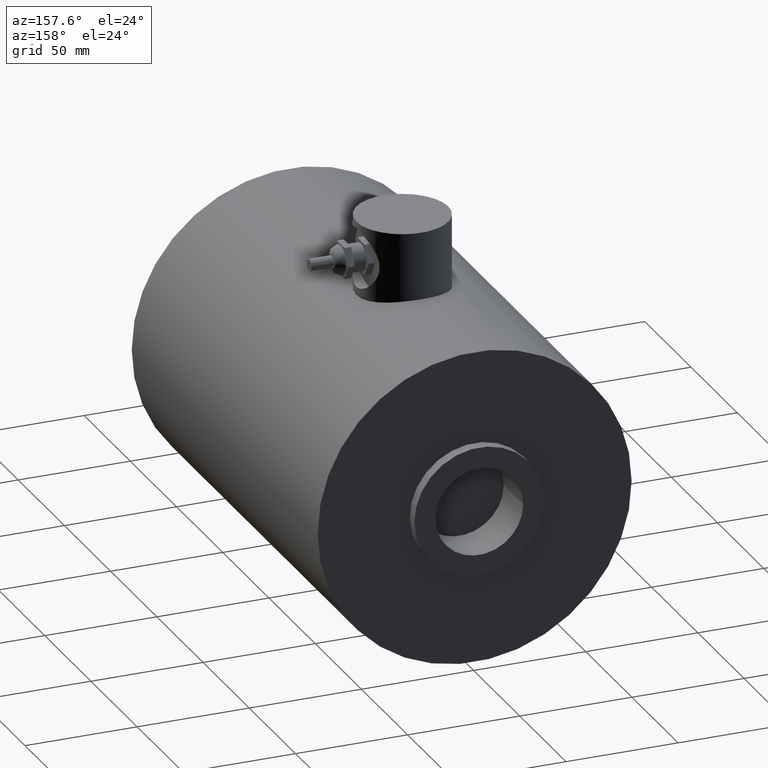
[diagram: clean part render]
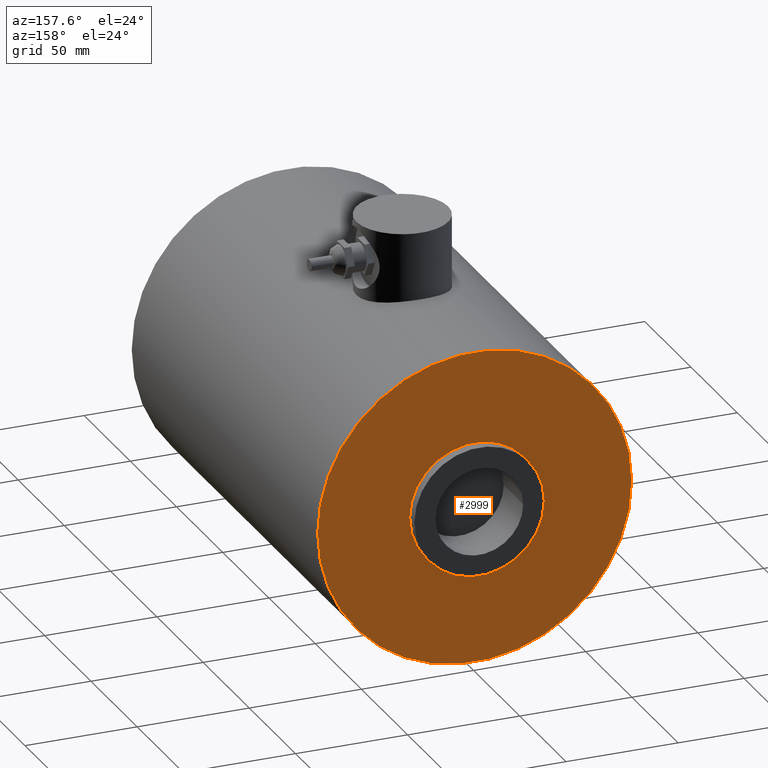
[diagram: same view with one face highlighted and labeled with its STEP entity id]
A machine part, auxiliary view. The second image highlights one B-rep face of the part: STEP entity #2999.
In plain terms, the highlighted planar face has unit normal (0, 1, 0).
Its self-contained STEP definition (entity closure, byte-faithful):
#283=FACE_BOUND('',#672,.T.);
#314=PLANE('',#3229);
#486=FACE_OUTER_BOUND('',#671,.T.);
#671=EDGE_LOOP('',(#2687,#2688));
#672=EDGE_LOOP('',(#2689,#2690));
#1049=CIRCLE('',#3227,1.14);
#1050=CIRCLE('',#3228,1.14);
#1051=CIRCLE('',#3230,2.755);
#1052=CIRCLE('',#3231,2.755);
#1344=VERTEX_POINT('',#16677);
#1345=VERTEX_POINT('',#16678);
#1346=VERTEX_POINT('',#16683);
#1347=VERTEX_POINT('',#16684);
#1792=EDGE_CURVE('',#1344,#1345,#1049,.T.);
#1793=EDGE_CURVE('',#1345,#1344,#1050,.T.);
#1795=EDGE_CURVE('',#1346,#1347,#1051,.T.);
#1796=EDGE_CURVE('',#1347,#1346,#1052,.T.);
#2687=ORIENTED_EDGE('',*,*,#1795,.F.);
#2688=ORIENTED_EDGE('',*,*,#1796,.F.);
#2689=ORIENTED_EDGE('',*,*,#1792,.T.);
#2690=ORIENTED_EDGE('',*,*,#1793,.T.);
#2999=ADVANCED_FACE('',(#486,#283),#314,.T.);
#3227=AXIS2_PLACEMENT_3D('',#16679,#3819,#3820);
#3228=AXIS2_PLACEMENT_3D('',#16680,#3821,#3822);
#3229=AXIS2_PLACEMENT_3D('',#16682,#3824,#3825);
#3230=AXIS2_PLACEMENT_3D('',#16685,#3826,#3827);
#3231=AXIS2_PLACEMENT_3D('',#16686,#3828,#3829);
#3819=DIRECTION('center_axis',(0.,-1.,0.));
#3820=DIRECTION('ref_axis',(1.,0.,0.));
#3821=DIRECTION('center_axis',(0.,-1.,0.));
#3822=DIRECTION('ref_axis',(1.,0.,0.));
#3824=DIRECTION('center_axis',(0.,1.,0.));
#3825=DIRECTION('ref_axis',(0.,0.,1.));
#3826=DIRECTION('center_axis',(0.,-1.,0.));
#3827=DIRECTION('ref_axis',(1.,0.,0.));
#3828=DIRECTION('center_axis',(0.,-1.,0.));
#3829=DIRECTION('ref_axis',(1.,0.,0.));
#16677=CARTESIAN_POINT('',(1.14,7.92,0.));
#16678=CARTESIAN_POINT('',(-1.14,7.92,-1.39609735102798E-16));
#16679=CARTESIAN_POINT('Origin',(-1.94109474709895E-32,7.92,0.));
#16680=CARTESIAN_POINT('Origin',(-1.94109474709895E-32,7.92,0.));
#16682=CARTESIAN_POINT('Origin',(2.755,7.92,0.));
#16683=CARTESIAN_POINT('',(2.755,7.92,0.));
#16684=CARTESIAN_POINT('',(-2.755,7.92,-3.37390193165096E-16));
#16685=CARTESIAN_POINT('Origin',(-1.94109474709895E-32,7.92,0.));
#16686=CARTESIAN_POINT('Origin',(-1.94109474709895E-32,7.92,0.));